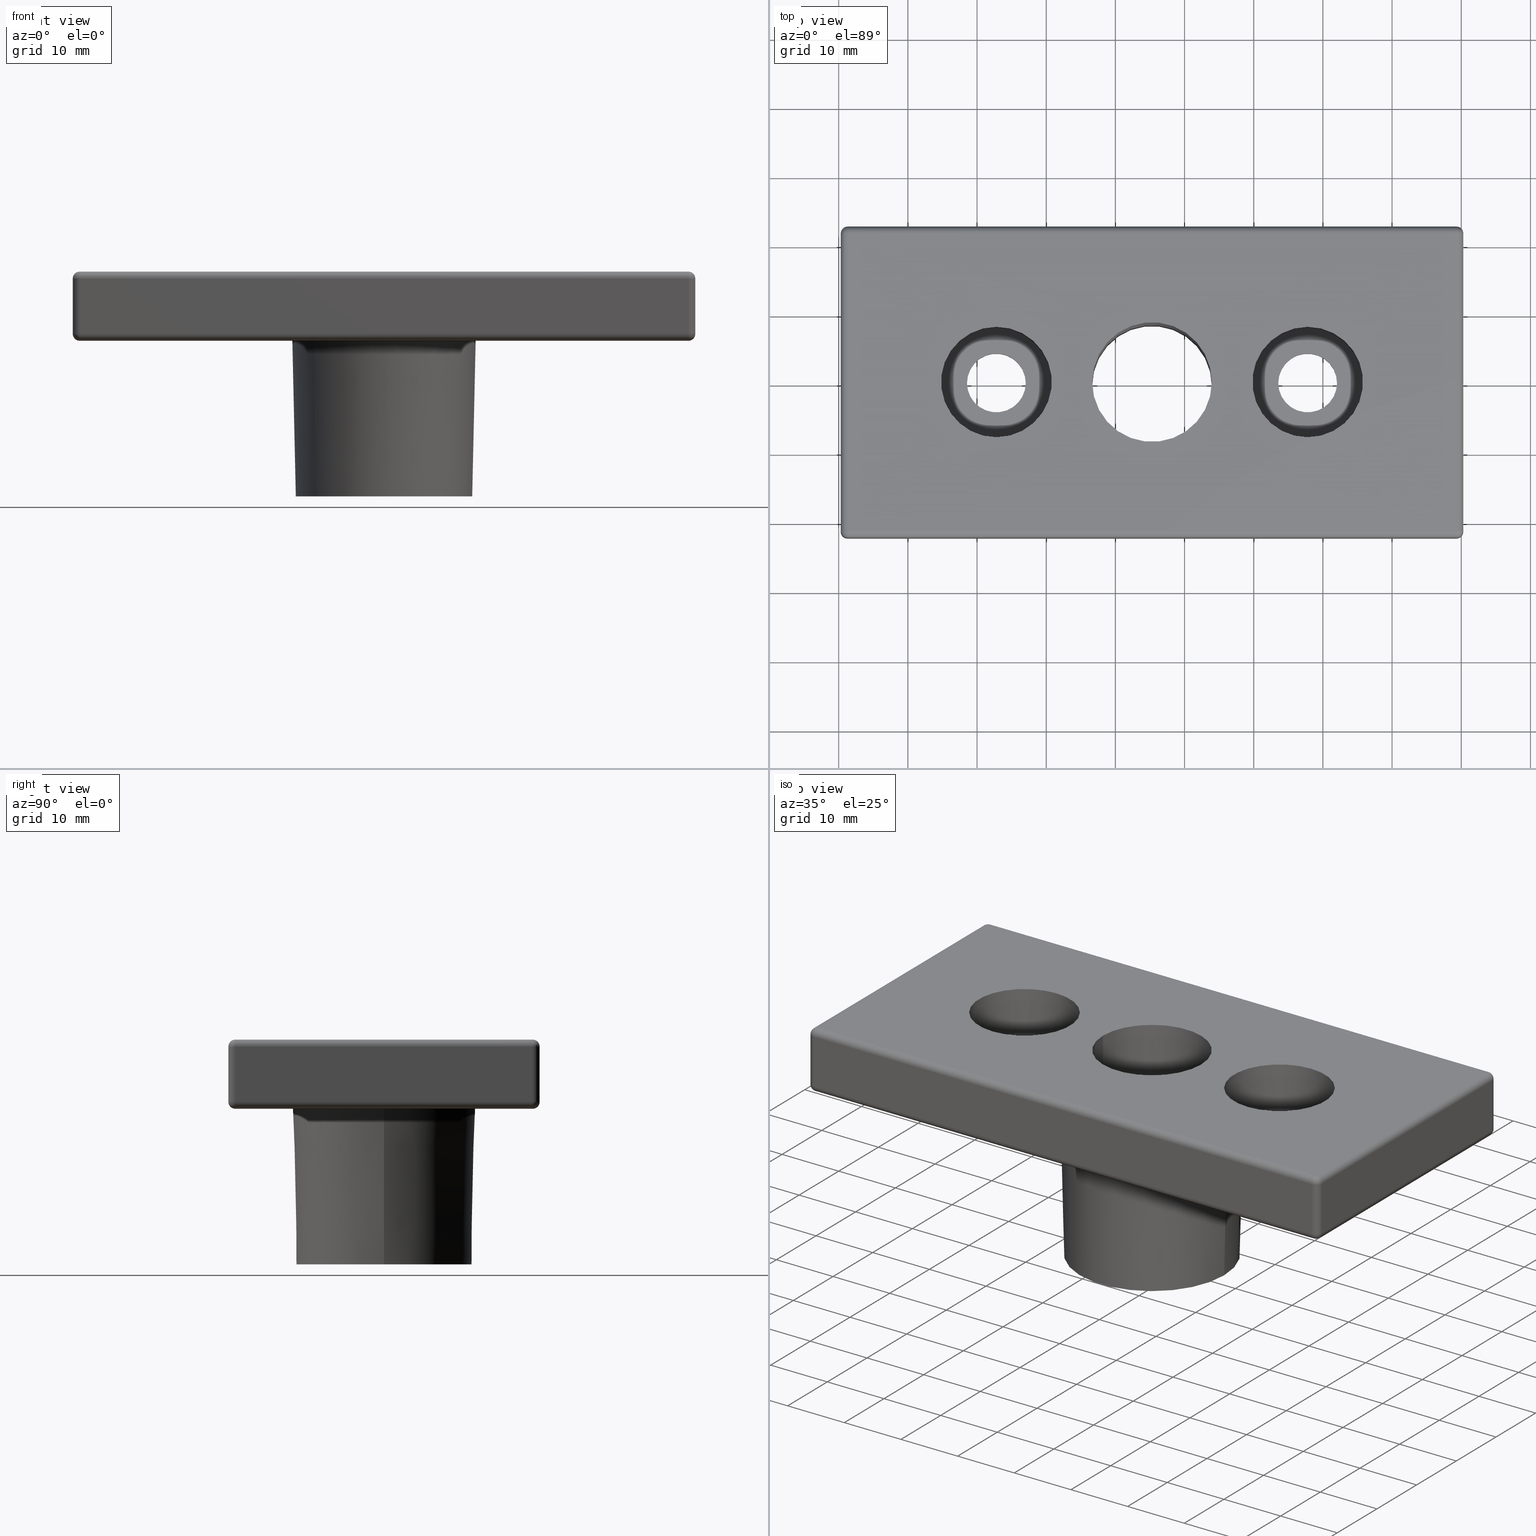
[diagram: canonical four-view strip — front | top / right | iso, engineering-drawing reading convention]
A machine part, canonical four-view strip (front | top / right | iso — engineering-drawing reading convention). The complete STEP part file that produces these views, byte-faithful:
ISO-10303-21;
HEADER;
/* Generated by software containing ST-Developer
 * from STEP Tools, Inc. (www.steptools.com) 
 */

FILE_DESCRIPTION(
/* description */ ('PIASTRA FISS. PIEDI A CODOLO M20 45X90'),
/* implementation_level */ '2;1');

FILE_NAME(
/* name */ 
'Q:\\Catalogo\\2_Accessori Dierre\\Per Download Web e catalogo cartace
o\\CATALOGO PIEDI E SOSTEGNI\\PAGINA 45\\DPSXX0000547.stp',
/* time_stamp */ '2018-11-05T17:03:15+01:00',
/* author */ ('fzagni'),
/* organization */ (''),
/* preprocessor_version */ 'ST-DEVELOPER v16.1',
/* originating_system */ 'Autodesk Inventor 2016',
/* authorisation */ '');

FILE_SCHEMA (('AUTOMOTIVE_DESIGN { 1 0 10303 214 3 1 1 }'));
ENDSEC;

DATA;
#10=MECHANICAL_DESIGN_GEOMETRIC_PRESENTATION_REPRESENTATION('',(#13),#861);
#11=SHAPE_REPRESENTATION_RELATIONSHIP('SRR','None',#870,#12);
#12=ADVANCED_BREP_SHAPE_REPRESENTATION('',(#14),#860);
#13=STYLED_ITEM('',(#879),#14);
#14=MANIFOLD_SOLID_BREP('Importato1',#485);
#15=SPHERICAL_SURFACE('',#517,1.00000001584191);
#16=SPHERICAL_SURFACE('',#520,1.0000000158419);
#17=SPHERICAL_SURFACE('',#537,0.999999987558442);
#18=SPHERICAL_SURFACE('',#539,1.00000003155409);
#19=SPHERICAL_SURFACE('',#541,1.0000000315542);
#20=SPHERICAL_SURFACE('',#543,0.999999987558416);
#21=SPHERICAL_SURFACE('',#553,0.999999991334935);
#22=SPHERICAL_SURFACE('',#555,0.999999991334957);
#23=LINE('',#761,#47);
#24=LINE('',#763,#48);
#25=LINE('',#765,#49);
#26=LINE('',#766,#50);
#27=LINE('',#770,#51);
#28=LINE('',#772,#52);
#29=LINE('',#774,#53);
#30=LINE('',#775,#54);
#31=LINE('',#779,#55);
#32=LINE('',#781,#56);
#33=LINE('',#783,#57);
#34=LINE('',#784,#58);
#35=LINE('',#788,#59);
#36=LINE('',#790,#60);
#37=LINE('',#792,#61);
#38=LINE('',#793,#62);
#39=LINE('',#797,#63);
#40=LINE('',#799,#64);
#41=LINE('',#801,#65);
#42=LINE('',#802,#66);
#43=LINE('',#806,#67);
#44=LINE('',#808,#68);
#45=LINE('',#810,#69);
#46=LINE('',#811,#70);
#47=VECTOR('',#600,87.999999998859);
#48=VECTOR('',#601,7.99999999882149);
#49=VECTOR('',#602,87.9999999988589);
#50=VECTOR('',#603,7.99999999889645);
#51=VECTOR('',#606,43.);
#52=VECTOR('',#607,8.);
#53=VECTOR('',#608,43.);
#54=VECTOR('',#609,8.);
#55=VECTOR('',#612,87.999999998859);
#56=VECTOR('',#613,7.99999999882149);
#57=VECTOR('',#614,87.999999998859);
#58=VECTOR('',#615,7.99999999889645);
#59=VECTOR('',#618,43.);
#60=VECTOR('',#619,8.);
#61=VECTOR('',#620,43.);
#62=VECTOR('',#621,8.);
#63=VECTOR('',#624,88.);
#64=VECTOR('',#625,43.);
#65=VECTOR('',#626,88.);
#66=VECTOR('',#627,43.);
#67=VECTOR('',#630,43.);
#68=VECTOR('',#631,88.);
#69=VECTOR('',#632,43.);
#70=VECTOR('',#633,88.);
#71=CONICAL_SURFACE('',#492,13.25,1.27303002005671);
#72=PLANE('',#490);
#73=PLANE('',#506);
#74=PLANE('',#507);
#75=PLANE('',#508);
#76=PLANE('',#509);
#77=PLANE('',#510);
#78=PLANE('',#511);
#79=PLANE('',#512);
#80=PLANE('',#513);
#81=FACE_BOUND('',#132,.T.);
#82=FACE_BOUND('',#134,.T.);
#83=FACE_BOUND('',#136,.T.);
#84=FACE_BOUND('',#138,.T.);
#85=FACE_BOUND('',#140,.T.);
#86=FACE_BOUND('',#142,.T.);
#87=FACE_BOUND('',#144,.T.);
#88=FACE_BOUND('',#150,.T.);
#89=FACE_BOUND('',#151,.T.);
#90=FACE_BOUND('',#152,.T.);
#91=FACE_BOUND('',#154,.T.);
#92=FACE_BOUND('',#155,.T.);
#93=FACE_BOUND('',#156,.T.);
#94=FACE_BOUND('',#158,.T.);
#95=FACE_BOUND('',#160,.T.);
#96=FACE_OUTER_BOUND('',#131,.T.);
#97=FACE_OUTER_BOUND('',#133,.T.);
#98=FACE_OUTER_BOUND('',#135,.T.);
#99=FACE_OUTER_BOUND('',#137,.T.);
#100=FACE_OUTER_BOUND('',#139,.T.);
#101=FACE_OUTER_BOUND('',#141,.T.);
#102=FACE_OUTER_BOUND('',#143,.T.);
#103=FACE_OUTER_BOUND('',#145,.T.);
#104=FACE_OUTER_BOUND('',#146,.T.);
#105=FACE_OUTER_BOUND('',#147,.T.);
#106=FACE_OUTER_BOUND('',#148,.T.);
#107=FACE_OUTER_BOUND('',#149,.T.);
#108=FACE_OUTER_BOUND('',#153,.T.);
#109=FACE_OUTER_BOUND('',#157,.T.);
#110=FACE_OUTER_BOUND('',#159,.T.);
#111=FACE_OUTER_BOUND('',#161,.T.);
#112=FACE_OUTER_BOUND('',#162,.T.);
#113=FACE_OUTER_BOUND('',#163,.T.);
#114=FACE_OUTER_BOUND('',#164,.T.);
#115=FACE_OUTER_BOUND('',#165,.T.);
#116=FACE_OUTER_BOUND('',#166,.T.);
#117=FACE_OUTER_BOUND('',#167,.T.);
#118=FACE_OUTER_BOUND('',#168,.T.);
#119=FACE_OUTER_BOUND('',#169,.T.);
#120=FACE_OUTER_BOUND('',#170,.T.);
#121=FACE_OUTER_BOUND('',#171,.T.);
#122=FACE_OUTER_BOUND('',#172,.T.);
#123=FACE_OUTER_BOUND('',#173,.T.);
#124=FACE_OUTER_BOUND('',#174,.T.);
#125=FACE_OUTER_BOUND('',#175,.T.);
#126=FACE_OUTER_BOUND('',#176,.T.);
#127=FACE_OUTER_BOUND('',#177,.T.);
#128=FACE_OUTER_BOUND('',#178,.T.);
#129=FACE_OUTER_BOUND('',#179,.T.);
#130=FACE_OUTER_BOUND('',#180,.T.);
#131=EDGE_LOOP('',(#313));
#132=EDGE_LOOP('',(#314));
#133=EDGE_LOOP('',(#315));
#134=EDGE_LOOP('',(#316));
#135=EDGE_LOOP('',(#317));
#136=EDGE_LOOP('',(#318));
#137=EDGE_LOOP('',(#319));
#138=EDGE_LOOP('',(#320));
#139=EDGE_LOOP('',(#321));
#140=EDGE_LOOP('',(#322));
#141=EDGE_LOOP('',(#323));
#142=EDGE_LOOP('',(#324));
#143=EDGE_LOOP('',(#325));
#144=EDGE_LOOP('',(#326));
#145=EDGE_LOOP('',(#327,#328,#329,#330));
#146=EDGE_LOOP('',(#331,#332,#333,#334));
#147=EDGE_LOOP('',(#335,#336,#337,#338));
#148=EDGE_LOOP('',(#339,#340,#341,#342));
#149=EDGE_LOOP('',(#343,#344,#345,#346));
#150=EDGE_LOOP('',(#347));
#151=EDGE_LOOP('',(#348));
#152=EDGE_LOOP('',(#349));
#153=EDGE_LOOP('',(#350,#351,#352,#353));
#154=EDGE_LOOP('',(#354));
#155=EDGE_LOOP('',(#355));
#156=EDGE_LOOP('',(#356));
#157=EDGE_LOOP('',(#357));
#158=EDGE_LOOP('',(#358));
#159=EDGE_LOOP('',(#359));
#160=EDGE_LOOP('',(#360));
#161=EDGE_LOOP('',(#361,#362,#363,#364));
#162=EDGE_LOOP('',(#365,#366,#367));
#163=EDGE_LOOP('',(#368,#369,#370));
#164=EDGE_LOOP('',(#371,#372,#373,#374));
#165=EDGE_LOOP('',(#375,#376,#377,#378));
#166=EDGE_LOOP('',(#379,#380,#381,#382));
#167=EDGE_LOOP('',(#383,#384,#385,#386));
#168=EDGE_LOOP('',(#387,#388,#389,#390));
#169=EDGE_LOOP('',(#391,#392,#393,#394));
#170=EDGE_LOOP('',(#395,#396,#397));
#171=EDGE_LOOP('',(#398,#399,#400));
#172=EDGE_LOOP('',(#401,#402,#403));
#173=EDGE_LOOP('',(#404,#405,#406));
#174=EDGE_LOOP('',(#407,#408,#409,#410));
#175=EDGE_LOOP('',(#411,#412,#413,#414));
#176=EDGE_LOOP('',(#415,#416,#417,#418));
#177=EDGE_LOOP('',(#419,#420,#421,#422));
#178=EDGE_LOOP('',(#423,#424,#425));
#179=EDGE_LOOP('',(#426,#427,#428));
#180=EDGE_LOOP('',(#429,#430,#431,#432));
#181=CIRCLE('',#488,8.647);
#182=CIRCLE('',#489,8.647);
#183=CIRCLE('',#491,12.75);
#184=CIRCLE('',#493,13.25);
#185=CIRCLE('',#495,8.);
#186=CIRCLE('',#496,8.);
#187=CIRCLE('',#498,4.25);
#188=CIRCLE('',#499,4.25);
#189=CIRCLE('',#501,8.);
#190=CIRCLE('',#502,8.);
#191=CIRCLE('',#504,4.25);
#192=CIRCLE('',#505,4.25);
#193=CIRCLE('',#515,1.);
#194=CIRCLE('',#516,1.);
#195=CIRCLE('',#518,1.);
#196=CIRCLE('',#519,1.);
#197=CIRCLE('',#521,1.);
#198=CIRCLE('',#522,1.);
#199=CIRCLE('',#524,1.);
#200=CIRCLE('',#526,1.);
#201=CIRCLE('',#528,1.);
#202=CIRCLE('',#529,1.);
#203=CIRCLE('',#531,1.);
#204=CIRCLE('',#533,1.);
#205=CIRCLE('',#535,1.);
#206=CIRCLE('',#536,1.);
#207=CIRCLE('',#538,1.);
#208=CIRCLE('',#540,1.);
#209=CIRCLE('',#542,1.);
#210=CIRCLE('',#544,1.);
#211=CIRCLE('',#546,1.);
#212=CIRCLE('',#548,1.);
#213=CIRCLE('',#550,1.);
#214=CIRCLE('',#552,1.);
#215=CIRCLE('',#554,1.);
#216=CIRCLE('',#556,1.);
#217=VERTEX_POINT('',#728);
#218=VERTEX_POINT('',#730);
#219=VERTEX_POINT('',#733);
#220=VERTEX_POINT('',#736);
#221=VERTEX_POINT('',#739);
#222=VERTEX_POINT('',#741);
#223=VERTEX_POINT('',#744);
#224=VERTEX_POINT('',#746);
#225=VERTEX_POINT('',#749);
#226=VERTEX_POINT('',#751);
#227=VERTEX_POINT('',#754);
#228=VERTEX_POINT('',#756);
#229=VERTEX_POINT('',#759);
#230=VERTEX_POINT('',#760);
#231=VERTEX_POINT('',#762);
#232=VERTEX_POINT('',#764);
#233=VERTEX_POINT('',#768);
#234=VERTEX_POINT('',#769);
#235=VERTEX_POINT('',#771);
#236=VERTEX_POINT('',#773);
#237=VERTEX_POINT('',#777);
#238=VERTEX_POINT('',#778);
#239=VERTEX_POINT('',#780);
#240=VERTEX_POINT('',#782);
#241=VERTEX_POINT('',#786);
#242=VERTEX_POINT('',#787);
#243=VERTEX_POINT('',#789);
#244=VERTEX_POINT('',#791);
#245=VERTEX_POINT('',#795);
#246=VERTEX_POINT('',#796);
#247=VERTEX_POINT('',#798);
#248=VERTEX_POINT('',#800);
#249=VERTEX_POINT('',#804);
#250=VERTEX_POINT('',#805);
#251=VERTEX_POINT('',#807);
#252=VERTEX_POINT('',#809);
#253=EDGE_CURVE('',#217,#217,#181,.T.);
#254=EDGE_CURVE('',#218,#218,#182,.T.);
#255=EDGE_CURVE('',#219,#219,#183,.T.);
#256=EDGE_CURVE('',#220,#220,#184,.T.);
#257=EDGE_CURVE('',#221,#221,#185,.T.);
#258=EDGE_CURVE('',#222,#222,#186,.T.);
#259=EDGE_CURVE('',#223,#223,#187,.T.);
#260=EDGE_CURVE('',#224,#224,#188,.T.);
#261=EDGE_CURVE('',#225,#225,#189,.T.);
#262=EDGE_CURVE('',#226,#226,#190,.T.);
#263=EDGE_CURVE('',#227,#227,#191,.T.);
#264=EDGE_CURVE('',#228,#228,#192,.T.);
#265=EDGE_CURVE('',#229,#230,#23,.T.);
#266=EDGE_CURVE('',#230,#231,#24,.T.);
#267=EDGE_CURVE('',#231,#232,#25,.T.);
#268=EDGE_CURVE('',#232,#229,#26,.T.);
#269=EDGE_CURVE('',#233,#234,#27,.T.);
#270=EDGE_CURVE('',#234,#235,#28,.T.);
#271=EDGE_CURVE('',#235,#236,#29,.T.);
#272=EDGE_CURVE('',#236,#233,#30,.T.);
#273=EDGE_CURVE('',#237,#238,#31,.T.);
#274=EDGE_CURVE('',#238,#239,#32,.T.);
#275=EDGE_CURVE('',#239,#240,#33,.T.);
#276=EDGE_CURVE('',#240,#237,#34,.T.);
#277=EDGE_CURVE('',#241,#242,#35,.T.);
#278=EDGE_CURVE('',#242,#243,#36,.T.);
#279=EDGE_CURVE('',#243,#244,#37,.T.);
#280=EDGE_CURVE('',#244,#241,#38,.T.);
#281=EDGE_CURVE('',#245,#246,#39,.T.);
#282=EDGE_CURVE('',#246,#247,#40,.T.);
#283=EDGE_CURVE('',#247,#248,#41,.T.);
#284=EDGE_CURVE('',#248,#245,#42,.T.);
#285=EDGE_CURVE('',#249,#250,#43,.T.);
#286=EDGE_CURVE('',#250,#251,#44,.T.);
#287=EDGE_CURVE('',#251,#252,#45,.T.);
#288=EDGE_CURVE('',#252,#249,#46,.T.);
#289=EDGE_CURVE('',#237,#236,#193,.T.);
#290=EDGE_CURVE('',#233,#240,#194,.T.);
#291=EDGE_CURVE('',#248,#236,#195,.T.);
#292=EDGE_CURVE('',#237,#248,#196,.T.);
#293=EDGE_CURVE('',#252,#240,#197,.T.);
#294=EDGE_CURVE('',#233,#252,#198,.T.);
#295=EDGE_CURVE('',#245,#235,#199,.T.);
#296=EDGE_CURVE('',#238,#247,#200,.T.);
#297=EDGE_CURVE('',#239,#244,#201,.T.);
#298=EDGE_CURVE('',#241,#238,#202,.T.);
#299=EDGE_CURVE('',#249,#239,#203,.T.);
#300=EDGE_CURVE('',#234,#251,#204,.T.);
#301=EDGE_CURVE('',#235,#232,#205,.T.);
#302=EDGE_CURVE('',#229,#234,#206,.T.);
#303=EDGE_CURVE('',#245,#232,#207,.T.);
#304=EDGE_CURVE('',#241,#247,#208,.T.);
#305=EDGE_CURVE('',#249,#244,#209,.T.);
#306=EDGE_CURVE('',#229,#251,#210,.T.);
#307=EDGE_CURVE('',#246,#231,#211,.T.);
#308=EDGE_CURVE('',#242,#246,#212,.T.);
#309=EDGE_CURVE('',#250,#243,#213,.T.);
#310=EDGE_CURVE('',#230,#250,#214,.T.);
#311=EDGE_CURVE('',#242,#231,#215,.T.);
#312=EDGE_CURVE('',#230,#243,#216,.T.);
#313=ORIENTED_EDGE('',*,*,#253,.F.);
#314=ORIENTED_EDGE('',*,*,#254,.F.);
#315=ORIENTED_EDGE('',*,*,#255,.F.);
#316=ORIENTED_EDGE('',*,*,#254,.T.);
#317=ORIENTED_EDGE('',*,*,#256,.F.);
#318=ORIENTED_EDGE('',*,*,#255,.T.);
#319=ORIENTED_EDGE('',*,*,#257,.F.);
#320=ORIENTED_EDGE('',*,*,#258,.F.);
#321=ORIENTED_EDGE('',*,*,#259,.T.);
#322=ORIENTED_EDGE('',*,*,#260,.T.);
#323=ORIENTED_EDGE('',*,*,#261,.F.);
#324=ORIENTED_EDGE('',*,*,#262,.F.);
#325=ORIENTED_EDGE('',*,*,#263,.T.);
#326=ORIENTED_EDGE('',*,*,#264,.T.);
#327=ORIENTED_EDGE('',*,*,#265,.T.);
#328=ORIENTED_EDGE('',*,*,#266,.T.);
#329=ORIENTED_EDGE('',*,*,#267,.T.);
#330=ORIENTED_EDGE('',*,*,#268,.T.);
#331=ORIENTED_EDGE('',*,*,#269,.T.);
#332=ORIENTED_EDGE('',*,*,#270,.T.);
#333=ORIENTED_EDGE('',*,*,#271,.T.);
#334=ORIENTED_EDGE('',*,*,#272,.T.);
#335=ORIENTED_EDGE('',*,*,#273,.T.);
#336=ORIENTED_EDGE('',*,*,#274,.T.);
#337=ORIENTED_EDGE('',*,*,#275,.T.);
#338=ORIENTED_EDGE('',*,*,#276,.T.);
#339=ORIENTED_EDGE('',*,*,#277,.T.);
#340=ORIENTED_EDGE('',*,*,#278,.T.);
#341=ORIENTED_EDGE('',*,*,#279,.T.);
#342=ORIENTED_EDGE('',*,*,#280,.T.);
#343=ORIENTED_EDGE('',*,*,#281,.T.);
#344=ORIENTED_EDGE('',*,*,#282,.T.);
#345=ORIENTED_EDGE('',*,*,#283,.T.);
#346=ORIENTED_EDGE('',*,*,#284,.T.);
#347=ORIENTED_EDGE('',*,*,#256,.T.);
#348=ORIENTED_EDGE('',*,*,#259,.F.);
#349=ORIENTED_EDGE('',*,*,#263,.F.);
#350=ORIENTED_EDGE('',*,*,#285,.T.);
#351=ORIENTED_EDGE('',*,*,#286,.T.);
#352=ORIENTED_EDGE('',*,*,#287,.T.);
#353=ORIENTED_EDGE('',*,*,#288,.T.);
#354=ORIENTED_EDGE('',*,*,#253,.T.);
#355=ORIENTED_EDGE('',*,*,#257,.T.);
#356=ORIENTED_EDGE('',*,*,#261,.T.);
#357=ORIENTED_EDGE('',*,*,#262,.T.);
#358=ORIENTED_EDGE('',*,*,#264,.F.);
#359=ORIENTED_EDGE('',*,*,#258,.T.);
#360=ORIENTED_EDGE('',*,*,#260,.F.);
#361=ORIENTED_EDGE('',*,*,#289,.F.);
#362=ORIENTED_EDGE('',*,*,#276,.F.);
#363=ORIENTED_EDGE('',*,*,#290,.F.);
#364=ORIENTED_EDGE('',*,*,#272,.F.);
#365=ORIENTED_EDGE('',*,*,#289,.T.);
#366=ORIENTED_EDGE('',*,*,#291,.F.);
#367=ORIENTED_EDGE('',*,*,#292,.F.);
#368=ORIENTED_EDGE('',*,*,#293,.F.);
#369=ORIENTED_EDGE('',*,*,#294,.F.);
#370=ORIENTED_EDGE('',*,*,#290,.T.);
#371=ORIENTED_EDGE('',*,*,#291,.T.);
#372=ORIENTED_EDGE('',*,*,#271,.F.);
#373=ORIENTED_EDGE('',*,*,#295,.F.);
#374=ORIENTED_EDGE('',*,*,#284,.F.);
#375=ORIENTED_EDGE('',*,*,#292,.T.);
#376=ORIENTED_EDGE('',*,*,#283,.F.);
#377=ORIENTED_EDGE('',*,*,#296,.F.);
#378=ORIENTED_EDGE('',*,*,#273,.F.);
#379=ORIENTED_EDGE('',*,*,#297,.F.);
#380=ORIENTED_EDGE('',*,*,#274,.F.);
#381=ORIENTED_EDGE('',*,*,#298,.F.);
#382=ORIENTED_EDGE('',*,*,#280,.F.);
#383=ORIENTED_EDGE('',*,*,#293,.T.);
#384=ORIENTED_EDGE('',*,*,#275,.F.);
#385=ORIENTED_EDGE('',*,*,#299,.F.);
#386=ORIENTED_EDGE('',*,*,#288,.F.);
#387=ORIENTED_EDGE('',*,*,#294,.T.);
#388=ORIENTED_EDGE('',*,*,#287,.F.);
#389=ORIENTED_EDGE('',*,*,#300,.F.);
#390=ORIENTED_EDGE('',*,*,#269,.F.);
#391=ORIENTED_EDGE('',*,*,#301,.F.);
#392=ORIENTED_EDGE('',*,*,#270,.F.);
#393=ORIENTED_EDGE('',*,*,#302,.F.);
#394=ORIENTED_EDGE('',*,*,#268,.F.);
#395=ORIENTED_EDGE('',*,*,#303,.F.);
#396=ORIENTED_EDGE('',*,*,#295,.T.);
#397=ORIENTED_EDGE('',*,*,#301,.T.);
#398=ORIENTED_EDGE('',*,*,#296,.T.);
#399=ORIENTED_EDGE('',*,*,#304,.F.);
#400=ORIENTED_EDGE('',*,*,#298,.T.);
#401=ORIENTED_EDGE('',*,*,#297,.T.);
#402=ORIENTED_EDGE('',*,*,#305,.F.);
#403=ORIENTED_EDGE('',*,*,#299,.T.);
#404=ORIENTED_EDGE('',*,*,#302,.T.);
#405=ORIENTED_EDGE('',*,*,#300,.T.);
#406=ORIENTED_EDGE('',*,*,#306,.F.);
#407=ORIENTED_EDGE('',*,*,#303,.T.);
#408=ORIENTED_EDGE('',*,*,#267,.F.);
#409=ORIENTED_EDGE('',*,*,#307,.F.);
#410=ORIENTED_EDGE('',*,*,#281,.F.);
#411=ORIENTED_EDGE('',*,*,#304,.T.);
#412=ORIENTED_EDGE('',*,*,#282,.F.);
#413=ORIENTED_EDGE('',*,*,#308,.F.);
#414=ORIENTED_EDGE('',*,*,#277,.F.);
#415=ORIENTED_EDGE('',*,*,#305,.T.);
#416=ORIENTED_EDGE('',*,*,#279,.F.);
#417=ORIENTED_EDGE('',*,*,#309,.F.);
#418=ORIENTED_EDGE('',*,*,#285,.F.);
#419=ORIENTED_EDGE('',*,*,#306,.T.);
#420=ORIENTED_EDGE('',*,*,#286,.F.);
#421=ORIENTED_EDGE('',*,*,#310,.F.);
#422=ORIENTED_EDGE('',*,*,#265,.F.);
#423=ORIENTED_EDGE('',*,*,#311,.F.);
#424=ORIENTED_EDGE('',*,*,#308,.T.);
#425=ORIENTED_EDGE('',*,*,#307,.T.);
#426=ORIENTED_EDGE('',*,*,#310,.T.);
#427=ORIENTED_EDGE('',*,*,#309,.T.);
#428=ORIENTED_EDGE('',*,*,#312,.F.);
#429=ORIENTED_EDGE('',*,*,#311,.T.);
#430=ORIENTED_EDGE('',*,*,#266,.F.);
#431=ORIENTED_EDGE('',*,*,#312,.T.);
#432=ORIENTED_EDGE('',*,*,#278,.F.);
#433=CYLINDRICAL_SURFACE('',#487,8.647);
#434=CYLINDRICAL_SURFACE('',#494,8.);
#435=CYLINDRICAL_SURFACE('',#497,4.25);
#436=CYLINDRICAL_SURFACE('',#500,8.);
#437=CYLINDRICAL_SURFACE('',#503,4.25);
#438=CYLINDRICAL_SURFACE('',#514,1.);
#439=CYLINDRICAL_SURFACE('',#523,1.);
#440=CYLINDRICAL_SURFACE('',#525,1.);
#441=CYLINDRICAL_SURFACE('',#527,1.);
#442=CYLINDRICAL_SURFACE('',#530,1.);
#443=CYLINDRICAL_SURFACE('',#532,1.);
#444=CYLINDRICAL_SURFACE('',#534,1.);
#445=CYLINDRICAL_SURFACE('',#545,1.);
#446=CYLINDRICAL_SURFACE('',#547,1.);
#447=CYLINDRICAL_SURFACE('',#549,1.);
#448=CYLINDRICAL_SURFACE('',#551,1.);
#449=CYLINDRICAL_SURFACE('',#557,1.);
#450=ADVANCED_FACE('',(#96,#81),#433,.F.);
#451=ADVANCED_FACE('',(#97,#82),#72,.F.);
#452=ADVANCED_FACE('',(#98,#83),#71,.T.);
#453=ADVANCED_FACE('',(#99,#84),#434,.F.);
#454=ADVANCED_FACE('',(#100,#85),#435,.F.);
#455=ADVANCED_FACE('',(#101,#86),#436,.F.);
#456=ADVANCED_FACE('',(#102,#87),#437,.F.);
#457=ADVANCED_FACE('',(#103),#73,.T.);
#458=ADVANCED_FACE('',(#104),#74,.T.);
#459=ADVANCED_FACE('',(#105),#75,.T.);
#460=ADVANCED_FACE('',(#106),#76,.T.);
#461=ADVANCED_FACE('',(#107,#88,#89,#90),#77,.T.);
#462=ADVANCED_FACE('',(#108,#91,#92,#93),#78,.F.);
#463=ADVANCED_FACE('',(#109,#94),#79,.F.);
#464=ADVANCED_FACE('',(#110,#95),#80,.F.);
#465=ADVANCED_FACE('',(#111),#438,.T.);
#466=ADVANCED_FACE('',(#112),#15,.T.);
#467=ADVANCED_FACE('',(#113),#16,.T.);
#468=ADVANCED_FACE('',(#114),#439,.T.);
#469=ADVANCED_FACE('',(#115),#440,.T.);
#470=ADVANCED_FACE('',(#116),#441,.T.);
#471=ADVANCED_FACE('',(#117),#442,.T.);
#472=ADVANCED_FACE('',(#118),#443,.T.);
#473=ADVANCED_FACE('',(#119),#444,.T.);
#474=ADVANCED_FACE('',(#120),#17,.T.);
#475=ADVANCED_FACE('',(#121),#18,.T.);
#476=ADVANCED_FACE('',(#122),#19,.T.);
#477=ADVANCED_FACE('',(#123),#20,.T.);
#478=ADVANCED_FACE('',(#124),#445,.T.);
#479=ADVANCED_FACE('',(#125),#446,.T.);
#480=ADVANCED_FACE('',(#126),#447,.T.);
#481=ADVANCED_FACE('',(#127),#448,.T.);
#482=ADVANCED_FACE('',(#128),#21,.T.);
#483=ADVANCED_FACE('',(#129),#22,.T.);
#484=ADVANCED_FACE('',(#130),#449,.T.);
#485=CLOSED_SHELL('',(#450,#451,#452,#453,#454,#455,#456,#457,#458,#459,
#460,#461,#462,#463,#464,#465,#466,#467,#468,#469,#470,#471,#472,#473,#474,
#475,#476,#477,#478,#479,#480,#481,#482,#483,#484));
#486=AXIS2_PLACEMENT_3D('placement',#726,#558,#559);
#487=AXIS2_PLACEMENT_3D('',#727,#560,#561);
#488=AXIS2_PLACEMENT_3D('',#729,#562,#563);
#489=AXIS2_PLACEMENT_3D('',#731,#564,#565);
#490=AXIS2_PLACEMENT_3D('',#732,#566,#567);
#491=AXIS2_PLACEMENT_3D('',#734,#568,#569);
#492=AXIS2_PLACEMENT_3D('',#735,#570,#571);
#493=AXIS2_PLACEMENT_3D('',#737,#572,#573);
#494=AXIS2_PLACEMENT_3D('',#738,#574,#575);
#495=AXIS2_PLACEMENT_3D('',#740,#576,#577);
#496=AXIS2_PLACEMENT_3D('',#742,#578,#579);
#497=AXIS2_PLACEMENT_3D('',#743,#580,#581);
#498=AXIS2_PLACEMENT_3D('',#745,#582,#583);
#499=AXIS2_PLACEMENT_3D('',#747,#584,#585);
#500=AXIS2_PLACEMENT_3D('',#748,#586,#587);
#501=AXIS2_PLACEMENT_3D('',#750,#588,#589);
#502=AXIS2_PLACEMENT_3D('',#752,#590,#591);
#503=AXIS2_PLACEMENT_3D('',#753,#592,#593);
#504=AXIS2_PLACEMENT_3D('',#755,#594,#595);
#505=AXIS2_PLACEMENT_3D('',#757,#596,#597);
#506=AXIS2_PLACEMENT_3D('',#758,#598,#599);
#507=AXIS2_PLACEMENT_3D('',#767,#604,#605);
#508=AXIS2_PLACEMENT_3D('',#776,#610,#611);
#509=AXIS2_PLACEMENT_3D('',#785,#616,#617);
#510=AXIS2_PLACEMENT_3D('',#794,#622,#623);
#511=AXIS2_PLACEMENT_3D('',#803,#628,#629);
#512=AXIS2_PLACEMENT_3D('',#812,#634,#635);
#513=AXIS2_PLACEMENT_3D('',#813,#636,#637);
#514=AXIS2_PLACEMENT_3D('',#814,#638,#639);
#515=AXIS2_PLACEMENT_3D('',#815,#640,#641);
#516=AXIS2_PLACEMENT_3D('',#816,#642,#643);
#517=AXIS2_PLACEMENT_3D('',#817,#644,#645);
#518=AXIS2_PLACEMENT_3D('',#818,#646,#647);
#519=AXIS2_PLACEMENT_3D('',#819,#648,#649);
#520=AXIS2_PLACEMENT_3D('',#820,#650,#651);
#521=AXIS2_PLACEMENT_3D('',#821,#652,#653);
#522=AXIS2_PLACEMENT_3D('',#822,#654,#655);
#523=AXIS2_PLACEMENT_3D('',#823,#656,#657);
#524=AXIS2_PLACEMENT_3D('',#824,#658,#659);
#525=AXIS2_PLACEMENT_3D('',#825,#660,#661);
#526=AXIS2_PLACEMENT_3D('',#826,#662,#663);
#527=AXIS2_PLACEMENT_3D('',#827,#664,#665);
#528=AXIS2_PLACEMENT_3D('',#828,#666,#667);
#529=AXIS2_PLACEMENT_3D('',#829,#668,#669);
#530=AXIS2_PLACEMENT_3D('',#830,#670,#671);
#531=AXIS2_PLACEMENT_3D('',#831,#672,#673);
#532=AXIS2_PLACEMENT_3D('',#832,#674,#675);
#533=AXIS2_PLACEMENT_3D('',#833,#676,#677);
#534=AXIS2_PLACEMENT_3D('',#834,#678,#679);
#535=AXIS2_PLACEMENT_3D('',#835,#680,#681);
#536=AXIS2_PLACEMENT_3D('',#836,#682,#683);
#537=AXIS2_PLACEMENT_3D('',#837,#684,#685);
#538=AXIS2_PLACEMENT_3D('',#838,#686,#687);
#539=AXIS2_PLACEMENT_3D('',#839,#688,#689);
#540=AXIS2_PLACEMENT_3D('',#840,#690,#691);
#541=AXIS2_PLACEMENT_3D('',#841,#692,#693);
#542=AXIS2_PLACEMENT_3D('',#842,#694,#695);
#543=AXIS2_PLACEMENT_3D('',#843,#696,#697);
#544=AXIS2_PLACEMENT_3D('',#844,#698,#699);
#545=AXIS2_PLACEMENT_3D('',#845,#700,#701);
#546=AXIS2_PLACEMENT_3D('',#846,#702,#703);
#547=AXIS2_PLACEMENT_3D('',#847,#704,#705);
#548=AXIS2_PLACEMENT_3D('',#848,#706,#707);
#549=AXIS2_PLACEMENT_3D('',#849,#708,#709);
#550=AXIS2_PLACEMENT_3D('',#850,#710,#711);
#551=AXIS2_PLACEMENT_3D('',#851,#712,#713);
#552=AXIS2_PLACEMENT_3D('',#852,#714,#715);
#553=AXIS2_PLACEMENT_3D('',#853,#716,#717);
#554=AXIS2_PLACEMENT_3D('',#854,#718,#719);
#555=AXIS2_PLACEMENT_3D('',#855,#720,#721);
#556=AXIS2_PLACEMENT_3D('',#856,#722,#723);
#557=AXIS2_PLACEMENT_3D('',#857,#724,#725);
#558=DIRECTION('axis',(0.,0.,1.));
#559=DIRECTION('refdir',(1.,0.,0.));
#560=DIRECTION('center_axis',(0.,0.,-1.));
#561=DIRECTION('ref_axis',(-1.,0.,0.));
#562=DIRECTION('center_axis',(0.,0.,-1.));
#563=DIRECTION('ref_axis',(-1.,0.,0.));
#564=DIRECTION('center_axis',(0.,0.,1.));
#565=DIRECTION('ref_axis',(-1.,0.,0.));
#566=DIRECTION('center_axis',(0.,0.,1.));
#567=DIRECTION('ref_axis',(1.,0.,0.));
#568=DIRECTION('center_axis',(0.,0.,1.));
#569=DIRECTION('ref_axis',(1.,0.,0.));
#570=DIRECTION('center_axis',(0.,0.,1.));
#571=DIRECTION('ref_axis',(1.,0.,0.));
#572=DIRECTION('center_axis',(0.,0.,1.));
#573=DIRECTION('ref_axis',(1.,0.,0.));
#574=DIRECTION('center_axis',(0.,0.,-1.));
#575=DIRECTION('ref_axis',(-1.,0.,0.));
#576=DIRECTION('center_axis',(0.,0.,-1.));
#577=DIRECTION('ref_axis',(0.,-1.,0.));
#578=DIRECTION('center_axis',(0.,0.,1.));
#579=DIRECTION('ref_axis',(0.,-1.,0.));
#580=DIRECTION('center_axis',(0.,0.,1.));
#581=DIRECTION('ref_axis',(0.,1.,0.));
#582=DIRECTION('center_axis',(0.,0.,-1.));
#583=DIRECTION('ref_axis',(-1.,0.,0.));
#584=DIRECTION('center_axis',(0.,0.,1.));
#585=DIRECTION('ref_axis',(-1.,0.,0.));
#586=DIRECTION('center_axis',(0.,0.,-1.));
#587=DIRECTION('ref_axis',(-1.,0.,0.));
#588=DIRECTION('center_axis',(0.,0.,-1.));
#589=DIRECTION('ref_axis',(0.,-1.,0.));
#590=DIRECTION('center_axis',(0.,0.,1.));
#591=DIRECTION('ref_axis',(0.,-1.,0.));
#592=DIRECTION('center_axis',(0.,0.,1.));
#593=DIRECTION('ref_axis',(0.,1.,0.));
#594=DIRECTION('center_axis',(0.,0.,-1.));
#595=DIRECTION('ref_axis',(-1.,0.,0.));
#596=DIRECTION('center_axis',(0.,0.,1.));
#597=DIRECTION('ref_axis',(-1.,0.,0.));
#598=DIRECTION('center_axis',(0.,-1.,0.));
#599=DIRECTION('ref_axis',(0.,0.,-1.));
#600=DIRECTION('',(-1.,0.,0.));
#601=DIRECTION('',(0.,0.,-1.));
#602=DIRECTION('',(1.,0.,0.));
#603=DIRECTION('',(0.,0.,1.));
#604=DIRECTION('center_axis',(1.,0.,0.));
#605=DIRECTION('ref_axis',(0.,0.,-1.));
#606=DIRECTION('',(0.,-1.,0.));
#607=DIRECTION('',(0.,0.,-1.));
#608=DIRECTION('',(0.,1.,0.));
#609=DIRECTION('',(0.,0.,1.));
#610=DIRECTION('center_axis',(0.,1.,0.));
#611=DIRECTION('ref_axis',(0.,0.,1.));
#612=DIRECTION('',(-1.,0.,0.));
#613=DIRECTION('',(0.,0.,1.));
#614=DIRECTION('',(1.,0.,0.));
#615=DIRECTION('',(0.,0.,-1.));
#616=DIRECTION('center_axis',(-1.,0.,0.));
#617=DIRECTION('ref_axis',(0.,0.,1.));
#618=DIRECTION('',(0.,-1.,0.));
#619=DIRECTION('',(0.,0.,1.));
#620=DIRECTION('',(0.,1.,0.));
#621=DIRECTION('',(0.,0.,-1.));
#622=DIRECTION('center_axis',(0.,0.,-1.));
#623=DIRECTION('ref_axis',(-1.,0.,0.));
#624=DIRECTION('',(-1.,0.,0.));
#625=DIRECTION('',(0.,1.,0.));
#626=DIRECTION('',(1.,0.,0.));
#627=DIRECTION('',(0.,-1.,0.));
#628=DIRECTION('center_axis',(0.,0.,-1.));
#629=DIRECTION('ref_axis',(-1.,0.,0.));
#630=DIRECTION('',(0.,-1.,0.));
#631=DIRECTION('',(1.,0.,0.));
#632=DIRECTION('',(0.,1.,0.));
#633=DIRECTION('',(-1.,0.,0.));
#634=DIRECTION('center_axis',(0.,0.,-1.));
#635=DIRECTION('ref_axis',(-1.,0.,0.));
#636=DIRECTION('center_axis',(0.,0.,-1.));
#637=DIRECTION('ref_axis',(-1.,0.,0.));
#638=DIRECTION('center_axis',(0.,0.,1.));
#639=DIRECTION('ref_axis',(-0.707106781186547,-0.707106781186548,0.));
#640=DIRECTION('center_axis',(0.,0.,-1.));
#641=DIRECTION('ref_axis',(-1.,0.,0.));
#642=DIRECTION('center_axis',(0.,0.,1.));
#643=DIRECTION('ref_axis',(1.,0.,0.));
#644=DIRECTION('center_axis',(0.577350269189626,0.577350269189626,0.577350269189626));
#645=DIRECTION('ref_axis',(-0.707106781186547,0.,0.707106781186548));
#646=DIRECTION('center_axis',(0.,-1.,0.));
#647=DIRECTION('ref_axis',(0.,0.,1.));
#648=DIRECTION('center_axis',(-1.,0.,0.));
#649=DIRECTION('ref_axis',(0.,0.,-1.));
#650=DIRECTION('center_axis',(0.577350269189626,0.577350269189626,0.577350269189626));
#651=DIRECTION('ref_axis',(-0.707106781186548,0.,0.707106781186547));
#652=DIRECTION('center_axis',(-1.,0.,0.));
#653=DIRECTION('ref_axis',(0.,0.,-1.));
#654=DIRECTION('center_axis',(0.,-1.,0.));
#655=DIRECTION('ref_axis',(0.,0.,1.));
#656=DIRECTION('center_axis',(0.,1.,0.));
#657=DIRECTION('ref_axis',(-1.,0.,0.));
#658=DIRECTION('center_axis',(0.,-1.,0.));
#659=DIRECTION('ref_axis',(0.,0.,-1.));
#660=DIRECTION('center_axis',(-1.,0.,0.));
#661=DIRECTION('ref_axis',(0.,0.,1.));
#662=DIRECTION('center_axis',(-1.,0.,0.));
#663=DIRECTION('ref_axis',(0.,0.,1.));
#664=DIRECTION('center_axis',(0.,0.,1.));
#665=DIRECTION('ref_axis',(1.,0.,0.));
#666=DIRECTION('center_axis',(0.,0.,1.));
#667=DIRECTION('ref_axis',(1.,0.,0.));
#668=DIRECTION('center_axis',(0.,0.,-1.));
#669=DIRECTION('ref_axis',(-1.,0.,0.));
#670=DIRECTION('center_axis',(1.,0.,0.));
#671=DIRECTION('ref_axis',(0.,0.,-1.));
#672=DIRECTION('center_axis',(-1.,0.,0.));
#673=DIRECTION('ref_axis',(0.,0.,1.));
#674=DIRECTION('center_axis',(0.,-1.,0.));
#675=DIRECTION('ref_axis',(-0.707106781186547,0.,-0.707106781186548));
#676=DIRECTION('center_axis',(0.,-1.,0.));
#677=DIRECTION('ref_axis',(0.,0.,-1.));
#678=DIRECTION('center_axis',(0.,0.,1.));
#679=DIRECTION('ref_axis',(-0.707106781186547,0.707106781186548,0.));
#680=DIRECTION('center_axis',(0.,0.,-1.));
#681=DIRECTION('ref_axis',(-1.,0.,0.));
#682=DIRECTION('center_axis',(0.,0.,1.));
#683=DIRECTION('ref_axis',(1.,0.,0.));
#684=DIRECTION('center_axis',(0.577350269189625,0.577350269189627,0.577350269189625));
#685=DIRECTION('ref_axis',(-0.707106781186547,0.,0.707106781186548));
#686=DIRECTION('center_axis',(-1.,0.,0.));
#687=DIRECTION('ref_axis',(0.,0.,-1.));
#688=DIRECTION('center_axis',(0.577350269189623,0.577350269189627,0.577350269189628));
#689=DIRECTION('ref_axis',(-0.707106781186548,0.,0.707106781186547));
#690=DIRECTION('center_axis',(0.,-1.,0.));
#691=DIRECTION('ref_axis',(0.,0.,1.));
#692=DIRECTION('center_axis',(0.57735026918963,0.577350269189623,0.577350269189625));
#693=DIRECTION('ref_axis',(-0.707106781186547,0.,0.707106781186548));
#694=DIRECTION('center_axis',(0.,-1.,0.));
#695=DIRECTION('ref_axis',(0.,0.,1.));
#696=DIRECTION('center_axis',(0.577350269189626,0.577350269189625,0.577350269189626));
#697=DIRECTION('ref_axis',(-0.707106781186547,0.,0.707106781186548));
#698=DIRECTION('center_axis',(-1.,0.,0.));
#699=DIRECTION('ref_axis',(0.,0.,-1.));
#700=DIRECTION('center_axis',(1.,0.,0.));
#701=DIRECTION('ref_axis',(0.,0.707106781186548,0.707106781186547));
#702=DIRECTION('center_axis',(-1.,0.,0.));
#703=DIRECTION('ref_axis',(0.,0.,1.));
#704=DIRECTION('center_axis',(0.,-1.,0.));
#705=DIRECTION('ref_axis',(0.707106781186548,0.,0.707106781186547));
#706=DIRECTION('center_axis',(0.,-1.,0.));
#707=DIRECTION('ref_axis',(0.,0.,-1.));
#708=DIRECTION('center_axis',(0.,1.,0.));
#709=DIRECTION('ref_axis',(0.707106781186548,0.,-0.707106781186547));
#710=DIRECTION('center_axis',(0.,-1.,0.));
#711=DIRECTION('ref_axis',(0.,0.,-1.));
#712=DIRECTION('center_axis',(-1.,0.,0.));
#713=DIRECTION('ref_axis',(0.,0.707106781186548,-0.707106781186547));
#714=DIRECTION('center_axis',(-1.,0.,0.));
#715=DIRECTION('ref_axis',(0.,0.,1.));
#716=DIRECTION('center_axis',(0.577350269189626,0.577350269189626,0.577350269189626));
#717=DIRECTION('ref_axis',(-0.707106781186544,0.,0.707106781186551));
#718=DIRECTION('center_axis',(0.,0.,1.));
#719=DIRECTION('ref_axis',(-1.,0.,0.));
#720=DIRECTION('center_axis',(0.577350269189626,0.577350269189626,0.577350269189626));
#721=DIRECTION('ref_axis',(-0.707106781186551,0.,0.707106781186544));
#722=DIRECTION('center_axis',(0.,0.,-1.));
#723=DIRECTION('ref_axis',(1.,0.,0.));
#724=DIRECTION('center_axis',(0.,0.,1.));
#725=DIRECTION('ref_axis',(1.,0.,0.));
#726=CARTESIAN_POINT('',(0.,0.,0.));
#727=CARTESIAN_POINT('Origin',(-44.7071067811866,0.,27.2071067811866));
#728=CARTESIAN_POINT('',(-36.0601067811866,-1.05895208722272E-15,9.70710678118655));
#729=CARTESIAN_POINT('Origin',(-44.7071067811866,0.,9.70710678118655));
#730=CARTESIAN_POINT('',(-53.3541067811866,0.,-22.7928932188135));
#731=CARTESIAN_POINT('Origin',(-44.7071067811866,0.,-22.7928932188135));
#732=CARTESIAN_POINT('Origin',(-44.7071067811866,0.,-22.7928932188135));
#733=CARTESIAN_POINT('',(-31.9571067811866,0.,-22.7928932188135));
#734=CARTESIAN_POINT('Origin',(-44.7071067811866,0.,-22.7928932188135));
#735=CARTESIAN_POINT('Origin',(-44.7071067811866,0.,-0.292893218813449));
#736=CARTESIAN_POINT('',(-31.4571067811866,0.,-0.292893218813449));
#737=CARTESIAN_POINT('Origin',(-44.7071067811866,0.,-0.292893218813449));
#738=CARTESIAN_POINT('Origin',(-22.2071067811865,0.,9.70710679118655));
#739=CARTESIAN_POINT('',(-22.2071067811865,-8.,9.70710678118655));
#740=CARTESIAN_POINT('Origin',(-22.2071067811865,0.,9.70710678118655));
#741=CARTESIAN_POINT('',(-22.2071067811865,-8.,2.70710678118655));
#742=CARTESIAN_POINT('Origin',(-22.2071067811865,0.,2.70710678118655));
#743=CARTESIAN_POINT('Origin',(-22.2071067811865,0.,-0.29289322881344));
#744=CARTESIAN_POINT('',(-17.9571067811865,0.,-0.292893218813443));
#745=CARTESIAN_POINT('Origin',(-22.2071067811865,0.,-0.292893218813443));
#746=CARTESIAN_POINT('',(-17.9571067811865,0.,2.70710678118655));
#747=CARTESIAN_POINT('Origin',(-22.2071067811865,0.,2.70710678118655));
#748=CARTESIAN_POINT('Origin',(-67.2071067811865,0.,9.70710679118655));
#749=CARTESIAN_POINT('',(-67.2071067811865,-8.,9.70710678118655));
#750=CARTESIAN_POINT('Origin',(-67.2071067811865,0.,9.70710678118655));
#751=CARTESIAN_POINT('',(-67.2071067811865,-8.,2.70710678118655));
#752=CARTESIAN_POINT('Origin',(-67.2071067811865,0.,2.70710678118655));
#753=CARTESIAN_POINT('Origin',(-67.2071067811865,0.,-0.29289322881344));
#754=CARTESIAN_POINT('',(-62.9571067811865,0.,-0.292893218813443));
#755=CARTESIAN_POINT('Origin',(-67.2071067811865,0.,-0.292893218813443));
#756=CARTESIAN_POINT('',(-62.9571067811865,0.,2.70710678118655));
#757=CARTESIAN_POINT('Origin',(-67.2071067811865,0.,2.70710678118655));
#758=CARTESIAN_POINT('Origin',(-93.1071067811865,-22.5,9.10710678118655));
#759=CARTESIAN_POINT('',(-0.707106781738327,-22.5,8.70710678063477));
#760=CARTESIAN_POINT('',(-88.7071067805973,-22.5,8.7071067805973));
#761=CARTESIAN_POINT('',(-0.70710678118655,-22.5,8.70710678118655));
#762=CARTESIAN_POINT('',(-88.7071067805973,-22.5,0.707106781775804));
#763=CARTESIAN_POINT('',(-88.7071067811865,-22.5,8.70710678118655));
#764=CARTESIAN_POINT('',(-0.707106781738328,-22.5,0.707106781738325));
#765=CARTESIAN_POINT('',(-88.7071067811865,-22.5,0.707106781186548));
#766=CARTESIAN_POINT('',(-0.70710678118655,-22.5,0.70710678118655));
#767=CARTESIAN_POINT('Origin',(0.29289321881345,-22.5,-0.292893218813449));
#768=CARTESIAN_POINT('',(0.29289321831878,21.5,8.70710678118655));
#769=CARTESIAN_POINT('',(0.29289321881345,-21.5,8.70710678118655));
#770=CARTESIAN_POINT('',(0.29289321881345,21.5,8.70710678118655));
#771=CARTESIAN_POINT('',(0.29289321881345,-21.5,0.707106781186548));
#772=CARTESIAN_POINT('',(0.29289321881345,-21.5,8.70710678118655));
#773=CARTESIAN_POINT('',(0.292893218813493,21.5,0.707106781186548));
#774=CARTESIAN_POINT('',(0.29289321881345,-21.5,0.707106781186548));
#775=CARTESIAN_POINT('',(0.292893218813507,21.5,0.707106781186548));
#776=CARTESIAN_POINT('Origin',(-93.1071067811865,22.5,0.307106781186548));
#777=CARTESIAN_POINT('',(-0.70710678173827,22.5,0.707106781738325));
#778=CARTESIAN_POINT('',(-88.7071067805973,22.5,0.707106781775804));
#779=CARTESIAN_POINT('',(-0.707106781186493,22.5,0.707106781186548));
#780=CARTESIAN_POINT('',(-88.7071067805973,22.5,8.7071067805973));
#781=CARTESIAN_POINT('',(-88.7071067811865,22.5,0.70710678118655));
#782=CARTESIAN_POINT('',(-0.707106781738272,22.5,8.70710678063477));
#783=CARTESIAN_POINT('',(-88.7071067811865,22.5,8.70710678118655));
#784=CARTESIAN_POINT('',(-0.707106781186493,22.5,8.70710678118655));
#785=CARTESIAN_POINT('Origin',(-89.7071067811865,-23.65,0.307106781186548));
#786=CARTESIAN_POINT('',(-89.7071067811865,21.5,0.707106781186548));
#787=CARTESIAN_POINT('',(-89.7071067811865,-21.5,0.707106781186548));
#788=CARTESIAN_POINT('',(-89.7071067811865,21.5,0.707106781186548));
#789=CARTESIAN_POINT('',(-89.7071067811865,-21.5,8.70710678118655));
#790=CARTESIAN_POINT('',(-89.7071067811865,-21.5,0.707106781186548));
#791=CARTESIAN_POINT('',(-89.7071067811865,21.5,8.70710678118655));
#792=CARTESIAN_POINT('',(-89.7071067811865,-21.5,8.70710678118655));
#793=CARTESIAN_POINT('',(-89.7071067811865,21.5,8.70710678118655));
#794=CARTESIAN_POINT('Origin',(3.69289321881352,-23.65,-0.292893218813449));
#795=CARTESIAN_POINT('',(-0.707106781186549,-21.5,-0.292893218813451));
#796=CARTESIAN_POINT('',(-88.7071067811865,-21.5,-0.292893218813451));
#797=CARTESIAN_POINT('',(-0.70710678118655,-21.5,-0.292893218813449));
#798=CARTESIAN_POINT('',(-88.7071067811865,21.5,-0.292893218813451));
#799=CARTESIAN_POINT('',(-88.7071067811865,-21.5,-0.292893218813449));
#800=CARTESIAN_POINT('',(-0.707106781186493,21.5,-0.292893218318756));
#801=CARTESIAN_POINT('',(-88.7071067811865,21.5,-0.292893218813449));
#802=CARTESIAN_POINT('',(-0.70710678118655,21.5,-0.292893218813449));
#803=CARTESIAN_POINT('Origin',(3.69289321881352,-23.65,9.70710678118655));
#804=CARTESIAN_POINT('',(-88.7071067811865,21.5,9.70710678118655));
#805=CARTESIAN_POINT('',(-88.7071067811865,-21.5,9.70710678118655));
#806=CARTESIAN_POINT('',(-88.7071067811865,21.5,9.70710678118655));
#807=CARTESIAN_POINT('',(-0.707106781186535,-21.5,9.70710678118655));
#808=CARTESIAN_POINT('',(-88.7071067811865,-21.5,9.70710678118655));
#809=CARTESIAN_POINT('',(-0.707106781186493,21.5,9.70710678118655));
#810=CARTESIAN_POINT('',(-0.707106781186493,-21.5,9.70710678118655));
#811=CARTESIAN_POINT('',(-0.707106781186493,21.5,9.70710678118655));
#812=CARTESIAN_POINT('Origin',(-58.4071067811865,-8.8,2.70710678118655));
#813=CARTESIAN_POINT('Origin',(-13.4071067811865,-8.8,2.70710678118655));
#814=CARTESIAN_POINT('Origin',(-0.707106781186493,21.5,0.707106771186548));
#815=CARTESIAN_POINT('Origin',(-0.707106781186493,21.5,0.707106781186548));
#816=CARTESIAN_POINT('Origin',(-0.707106781186493,21.5,8.70710678118655));
#817=CARTESIAN_POINT('Origin',(-0.70710678611498,21.4999999905615,0.707106799007238));
#818=CARTESIAN_POINT('Origin',(-0.707106781186493,21.5,0.707106781186548));
#819=CARTESIAN_POINT('Origin',(-0.707106781186493,21.5,0.707106781186548));
#820=CARTESIAN_POINT('Origin',(-0.707106799007182,21.4999999905615,8.70710677625807));
#821=CARTESIAN_POINT('Origin',(-0.707106781186493,21.5,8.70710678118655));
#822=CARTESIAN_POINT('Origin',(-0.707106781186493,21.5,8.70710678118655));
#823=CARTESIAN_POINT('Origin',(-0.70710678118655,-21.50000001,0.707106781186548));
#824=CARTESIAN_POINT('Origin',(-0.70710678118655,-21.5,0.707106781186548));
#825=CARTESIAN_POINT('Origin',(-0.707106771186489,21.5,0.707106781186548));
#826=CARTESIAN_POINT('Origin',(-88.7071067811865,21.5,0.707106781186548));
#827=CARTESIAN_POINT('Origin',(-88.7071067811865,21.5,0.707106771186548));
#828=CARTESIAN_POINT('Origin',(-88.7071067811865,21.5,8.70710678118655));
#829=CARTESIAN_POINT('Origin',(-88.7071067811865,21.5,0.707106781186548));
#830=CARTESIAN_POINT('Origin',(-88.7071067911865,21.5,8.70710678118655));
#831=CARTESIAN_POINT('Origin',(-88.7071067811865,21.5,8.70710678118655));
#832=CARTESIAN_POINT('Origin',(-0.707106781186553,21.50000001,8.70710678118655));
#833=CARTESIAN_POINT('Origin',(-0.70710678118655,-21.5,8.70710678118655));
#834=CARTESIAN_POINT('Origin',(-0.70710678118655,-21.5,0.707106771186548));
#835=CARTESIAN_POINT('Origin',(-0.70710678118655,-21.5,0.707106781186548));
#836=CARTESIAN_POINT('Origin',(-0.70710678118655,-21.5,8.70710678118655));
#837=CARTESIAN_POINT('Origin',(-0.707106777302162,-21.5000000086579,0.707106780432134));
#838=CARTESIAN_POINT('Origin',(-0.70710678118655,-21.5,0.707106781186548));
#839=CARTESIAN_POINT('Origin',(-88.7071067397231,21.4999999780653,0.707106802051608));
#840=CARTESIAN_POINT('Origin',(-88.7071067811865,21.5,0.707106781186548));
#841=CARTESIAN_POINT('Origin',(-88.7071067603213,21.4999999780653,8.70710673972304));
#842=CARTESIAN_POINT('Origin',(-88.7071067811865,21.5,8.70710678118655));
#843=CARTESIAN_POINT('Origin',(-0.707106780432131,-21.5000000086579,8.70710678507097));
#844=CARTESIAN_POINT('Origin',(-0.70710678118655,-21.5,8.70710678118655));
#845=CARTESIAN_POINT('Origin',(-88.7071067911865,-21.5,0.707106781186548));
#846=CARTESIAN_POINT('Origin',(-88.7071067811865,-21.5,0.707106781186548));
#847=CARTESIAN_POINT('Origin',(-88.7071067811865,21.50000001,0.707106781186548));
#848=CARTESIAN_POINT('Origin',(-88.7071067811865,-21.5,0.707106781186548));
#849=CARTESIAN_POINT('Origin',(-88.7071067811865,-21.50000001,8.70710678118655));
#850=CARTESIAN_POINT('Origin',(-88.7071067811865,-21.5,8.70710678118655));
#851=CARTESIAN_POINT('Origin',(-0.707106771186546,-21.5,8.70710678118655));
#852=CARTESIAN_POINT('Origin',(-88.7071067811865,-21.5,8.70710678118655));
#853=CARTESIAN_POINT('Origin',(-88.7071067676704,-21.5000000056943,0.707106794992468));
#854=CARTESIAN_POINT('Origin',(-88.7071067811865,-21.5,0.707106781186548));
#855=CARTESIAN_POINT('Origin',(-88.7071067673805,-21.5000000056943,8.70710676767046));
#856=CARTESIAN_POINT('Origin',(-88.7071067811865,-21.5,8.70710678118655));
#857=CARTESIAN_POINT('Origin',(-88.7071067811865,-21.5,0.707106771186548));
#858=UNCERTAINTY_MEASURE_WITH_UNIT(LENGTH_MEASURE(0.01),#862,
'DISTANCE_ACCURACY_VALUE',
'Maximum model space distance between geometric entities at asserted c
onnectivities');
#859=UNCERTAINTY_MEASURE_WITH_UNIT(LENGTH_MEASURE(1.E-6),#862,
'DISTANCE_ACCURACY_VALUE',
'Maximum model space distance between geometric entities at asserted c
onnectivities');
#860=(
GEOMETRIC_REPRESENTATION_CONTEXT(3)
GLOBAL_UNCERTAINTY_ASSIGNED_CONTEXT((#858))
GLOBAL_UNIT_ASSIGNED_CONTEXT((#862,#865,#863))
REPRESENTATION_CONTEXT('','3D')
);
#861=(
GEOMETRIC_REPRESENTATION_CONTEXT(3)
GLOBAL_UNCERTAINTY_ASSIGNED_CONTEXT((#859))
GLOBAL_UNIT_ASSIGNED_CONTEXT((#862,#865,#863))
REPRESENTATION_CONTEXT('','3D')
);
#862=(
LENGTH_UNIT()
NAMED_UNIT(*)
SI_UNIT(.MILLI.,.METRE.)
);
#863=(
NAMED_UNIT(*)
SI_UNIT($,.STERADIAN.)
SOLID_ANGLE_UNIT()
);
#864=DIMENSIONAL_EXPONENTS(0.,0.,0.,0.,0.,0.,0.);
#865=(
CONVERSION_BASED_UNIT('degree',#867)
NAMED_UNIT(#864)
PLANE_ANGLE_UNIT()
);
#866=(
NAMED_UNIT(*)
PLANE_ANGLE_UNIT()
SI_UNIT($,.RADIAN.)
);
#867=PLANE_ANGLE_MEASURE_WITH_UNIT(PLANE_ANGLE_MEASURE(0.01745329252),#866);
#868=SHAPE_DEFINITION_REPRESENTATION(#869,#870);
#869=PRODUCT_DEFINITION_SHAPE('',$,#872);
#870=SHAPE_REPRESENTATION('',(#486),#860);
#871=PRODUCT_DEFINITION_CONTEXT('part definition',#876,'design');
#872=PRODUCT_DEFINITION('440000007034','440000007034',#873,#871);
#873=PRODUCT_DEFINITION_FORMATION('','A',#878);
#874=PRODUCT_RELATED_PRODUCT_CATEGORY('440000007034','440000007034',(#878));
#875=APPLICATION_PROTOCOL_DEFINITION('international standard',
'automotive_design',2009,#876);
#876=APPLICATION_CONTEXT(
'Core Data for Automotive Mechanical Design Process');
#877=PRODUCT_CONTEXT('part definition',#876,'mechanical');
#878=PRODUCT('440000007034','440000007034',$,(#877));
#879=PRESENTATION_STYLE_ASSIGNMENT((#880));
#880=SURFACE_STYLE_USAGE(.BOTH.,#881);
#881=SURFACE_SIDE_STYLE('',(#882));
#882=SURFACE_STYLE_FILL_AREA(#883);
#883=FILL_AREA_STYLE('',(#884));
#884=FILL_AREA_STYLE_COLOUR('',#885);
#885=COLOUR_RGB('',0.87843137254902,0.874509803921569,0.858823529411765);
ENDSEC;
END-ISO-10303-21;
